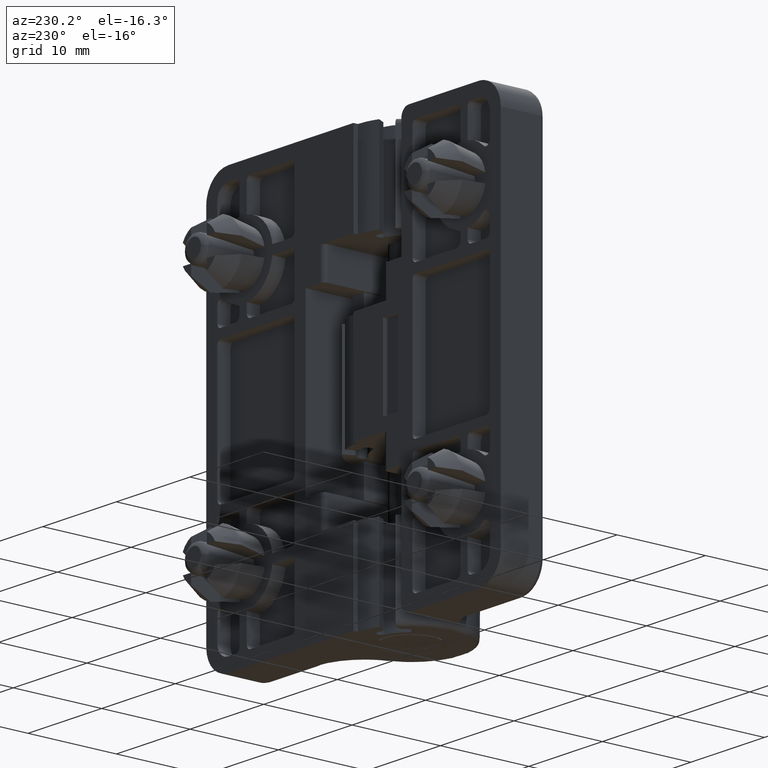
[diagram: clean part render]
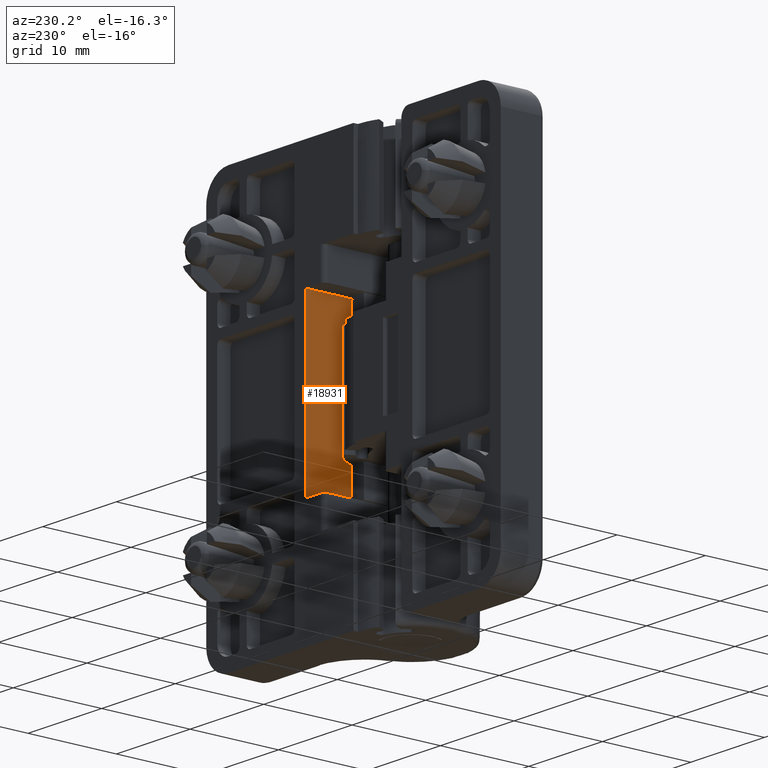
[diagram: same view with one face highlighted and labeled with its STEP entity id]
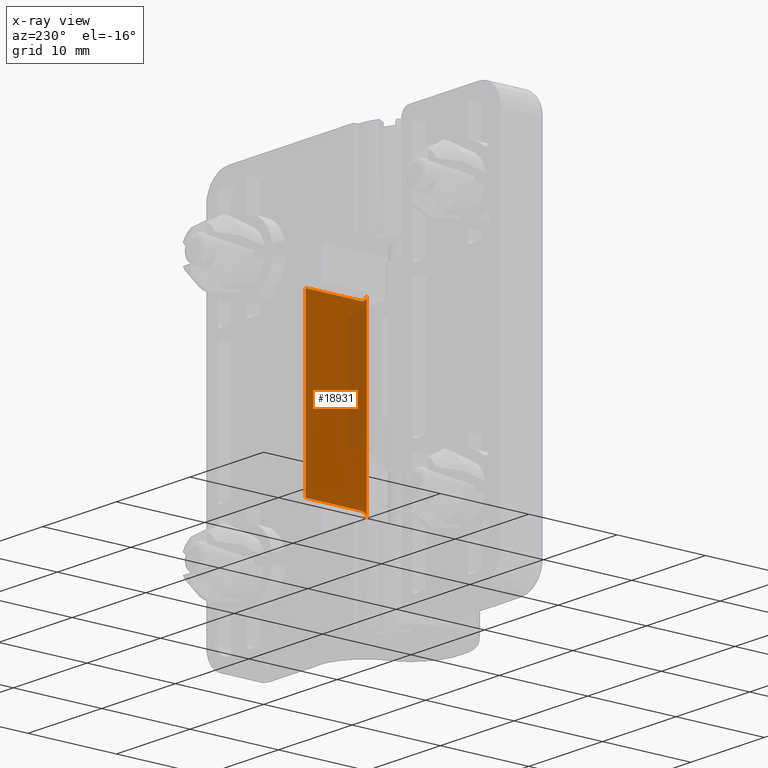
[diagram: x-ray of the same camera — body ghosted, the highlighted face saturated]
A machine part, auxiliary view. The second image highlights one B-rep face of the part: STEP entity #18931.
The next image is the same camera in x-ray: the body ghosted, the highlighted face saturated — about 20% of this face is hidden behind the body in this view.
In plain terms, the highlighted face is a freeform B-spline surface patch.
Its self-contained STEP definition (entity closure, byte-faithful):
#18029=CARTESIAN_POINT('',(6.499999999964360,0.349447816802240,-9.500000000025690));
#18030=VERTEX_POINT('',#18029);
#18031=CARTESIAN_POINT('',(6.500000000500759,-0.406741443319243,-10.000000000025659));
#18032=VERTEX_POINT('',#18031);
#18033=CARTESIAN_POINT('',(6.499999999964360,0.349447816802240,-9.500000000025690));
#18034=CARTESIAN_POINT('',(6.499999999963118,0.266279253731396,-9.500000000025693));
#18035=CARTESIAN_POINT('',(6.499999999964357,0.184796511318357,-9.509867699553588));
#18036=CARTESIAN_POINT('',(6.499999999964340,0.064989876562357,-9.538819600411374));
#18037=CARTESIAN_POINT('',(6.499999999964331,0.025271189697159,-9.550952124755423));
#18038=CARTESIAN_POINT('',(6.499999999964317,-0.052336629553669,-9.580323154935151));
#18039=CARTESIAN_POINT('',(6.499999999964306,-0.089880897523724,-9.597396297239479));
#18040=CARTESIAN_POINT('',(6.499999999964286,-0.162122194773932,-9.636939469568651));
#18041=CARTESIAN_POINT('',(6.499999999964272,-0.197003931308038,-9.659519003712575));
#18042=CARTESIAN_POINT('',(6.499999999964246,-0.262308868071731,-9.711109246534386));
#18043=CARTESIAN_POINT('',(6.499999999964231,-0.292220851847100,-9.739639458899148));
#18044=CARTESIAN_POINT('',(6.499999999964204,-0.331575332066351,-9.787937421568723));
#18045=CARTESIAN_POINT('',(6.499999999964196,-0.343792073870210,-9.805054323535153));
#18046=CARTESIAN_POINT('',(6.499999999964174,-0.365292704449441,-9.840508196634485));
#18047=CARTESIAN_POINT('',(6.499999999964165,-0.374669952217997,-9.858938046369129));
#18048=CARTESIAN_POINT('',(6.499999999964145,-0.390226104427864,-9.897435070777156));
#18049=CARTESIAN_POINT('',(6.499999999964135,-0.396399379476511,-9.917638455599786));
#18050=CARTESIAN_POINT('',(6.499999999964109,-0.404612883574726,-9.958345641226318));
#18051=CARTESIAN_POINT('',(6.499999999964099,-0.406741443986275,-9.979007156230008));
#18052=CARTESIAN_POINT('',(6.499999999964090,-0.406741444000803,-9.999999999811800));
#18053=B_SPLINE_CURVE_WITH_KNOTS('',3,(#18033,#18034,#18035,#18036,#18037,#18038,#18039,#18040,#18041,#18042,#18043,#18044,#18045,#18046,#18047,#18048,#18049,#18050,#18051,#18052),.UNSPECIFIED.,.F.,.U.,(4,2,2,2,2,2,2,2,2,4),(0.0,0.250000000000002,0.375000000000003,0.500000000000004,0.625000000000005,0.750000000000006,0.812500000000004,0.875000000000003,0.937500000000001,1.0),.UNSPECIFIED.);
#18054=EDGE_CURVE('',#18030,#18032,#18053,.T.);
#18208=CARTESIAN_POINT('',(6.499999999974691,0.349447816802240,9.499999999974310));
#18209=VERTEX_POINT('',#18208);
#18223=CARTESIAN_POINT('',(6.500000000500759,-0.406741443319243,9.999999999974250));
#18224=VERTEX_POINT('',#18223);
#18225=CARTESIAN_POINT('',(6.500000000500759,-0.406741443319243,9.999999999974250));
#18226=CARTESIAN_POINT('',(6.500000000500736,-0.406741443319272,9.958000057409166));
#18227=CARTESIAN_POINT('',(6.499999999974920,-0.398323466456036,9.917690781362754));
#18228=CARTESIAN_POINT('',(6.499999999974874,-0.367089065039467,9.839964013581740));
#18229=CARTESIAN_POINT('',(6.499999999974857,-0.345202559412005,9.804743578876138));
#18230=CARTESIAN_POINT('',(6.499999999974821,-0.292472254200997,9.739867086282409));
#18231=CARTESIAN_POINT('',(6.499999999974805,-0.262573601361975,9.711377410519418));
#18232=CARTESIAN_POINT('',(6.499999999974778,-0.197888523398468,9.660159833971971));
#18233=CARTESIAN_POINT('',(6.499999999974765,-0.162738321722660,9.637311668246825));
#18234=CARTESIAN_POINT('',(6.499999999974734,-0.054124895997704,9.577755184100107));
#18235=CARTESIAN_POINT('',(6.499999999974717,0.023014189709404,9.549066644139934));
#18236=CARTESIAN_POINT('',(6.499999999974696,0.184435701016282,9.509853018279060));
#18237=CARTESIAN_POINT('',(6.499999999974691,0.266339280040400,9.499999999974357));
#18238=CARTESIAN_POINT('',(6.499999999974691,0.349447816809013,9.499999999974252));
#18239=B_SPLINE_CURVE_WITH_KNOTS('',3,(#18225,#18226,#18227,#18228,#18229,#18230,#18231,#18232,#18233,#18234,#18235,#18236,#18237,#18238),.UNSPECIFIED.,.F.,.U.,(4,2,2,2,2,2,4),(0.0,0.125000000000000,0.250000000000000,0.375000000000000,0.500000000000000,0.750000000000000,1.0),.UNSPECIFIED.);
#18240=EDGE_CURVE('',#18224,#18209,#18239,.T.);
#18898=CARTESIAN_POINT('',(6.499999999963546,-0.751733165026435,-10.998999961261770));
#18899=CARTESIAN_POINT('',(6.499999999975507,-0.751733165026435,10.999000497652171));
#18900=CARTESIAN_POINT('',(6.499999999963546,6.844991906960433,-10.998999961261770));
#18901=CARTESIAN_POINT('',(6.499999999975507,6.844991906960433,10.999000497652171));
#18902=B_SPLINE_SURFACE_WITH_KNOTS('',1,1,((#18898,#18900),(#18899,#18901)),.UNSPECIFIED.,.F.,.F.,.U.,(2,2),(2,2),(0.0,21.998000458913939),(0.0,7.596725071986867),.UNSPECIFIED.);
#18903=CARTESIAN_POINT('',(6.500000000500759,-0.406741443319243,9.999999999974250));
#18904=CARTESIAN_POINT('',(6.500000000500759,-0.406741443319243,-10.000000000025659));
#18905=QUASI_UNIFORM_CURVE('',1,(#18903,#18904),.UNSPECIFIED.,.F.,.U.);
#18906=EDGE_CURVE('',#18224,#18032,#18905,.T.);
#18907=ORIENTED_EDGE('',*,*,#18906,.F.);
#18908=ORIENTED_EDGE('',*,*,#18240,.T.);
#18909=CARTESIAN_POINT('',(6.499999999974691,6.500000000000000,9.499999999974310));
#18910=VERTEX_POINT('',#18909);
#18911=CARTESIAN_POINT('',(6.499999999974691,0.349447816802240,9.499999999974310));
#18912=CARTESIAN_POINT('',(6.499999999974691,6.500000000000000,9.499999999974310));
#18913=QUASI_UNIFORM_CURVE('',1,(#18911,#18912),.UNSPECIFIED.,.F.,.U.);
#18914=EDGE_CURVE('',#18209,#18910,#18913,.T.);
#18915=ORIENTED_EDGE('',*,*,#18914,.T.);
#18916=CARTESIAN_POINT('',(6.499999999964360,6.500000000000000,-9.500000000025690));
#18917=VERTEX_POINT('',#18916);
#18918=CARTESIAN_POINT('',(6.499999999964360,6.500000000000000,-9.500000000025690));
#18919=CARTESIAN_POINT('',(6.499999999974691,6.500000000000000,9.499999999974310));
#18920=QUASI_UNIFORM_CURVE('',1,(#18918,#18919),.UNSPECIFIED.,.F.,.U.);
#18921=EDGE_CURVE('',#18917,#18910,#18920,.T.);
#18922=ORIENTED_EDGE('',*,*,#18921,.F.);
#18923=CARTESIAN_POINT('',(6.499999999964360,0.349447816802240,-9.500000000025690));
#18924=CARTESIAN_POINT('',(6.499999999964360,6.500000000000000,-9.500000000025690));
#18925=QUASI_UNIFORM_CURVE('',1,(#18923,#18924),.UNSPECIFIED.,.F.,.U.);
#18926=EDGE_CURVE('',#18030,#18917,#18925,.T.);
#18927=ORIENTED_EDGE('',*,*,#18926,.F.);
#18928=ORIENTED_EDGE('',*,*,#18054,.T.);
#18929=EDGE_LOOP('',(#18907,#18908,#18915,#18922,#18927,#18928));
#18930=FACE_OUTER_BOUND('',#18929,.T.);
#18931=ADVANCED_FACE('',(#18930),#18902,.T.);